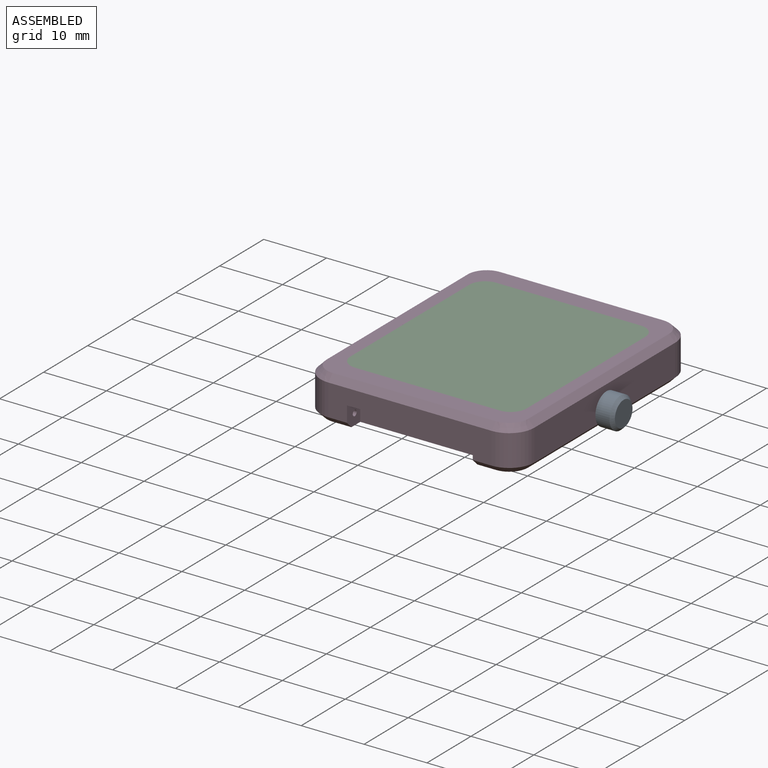
[diagram: assembled view]
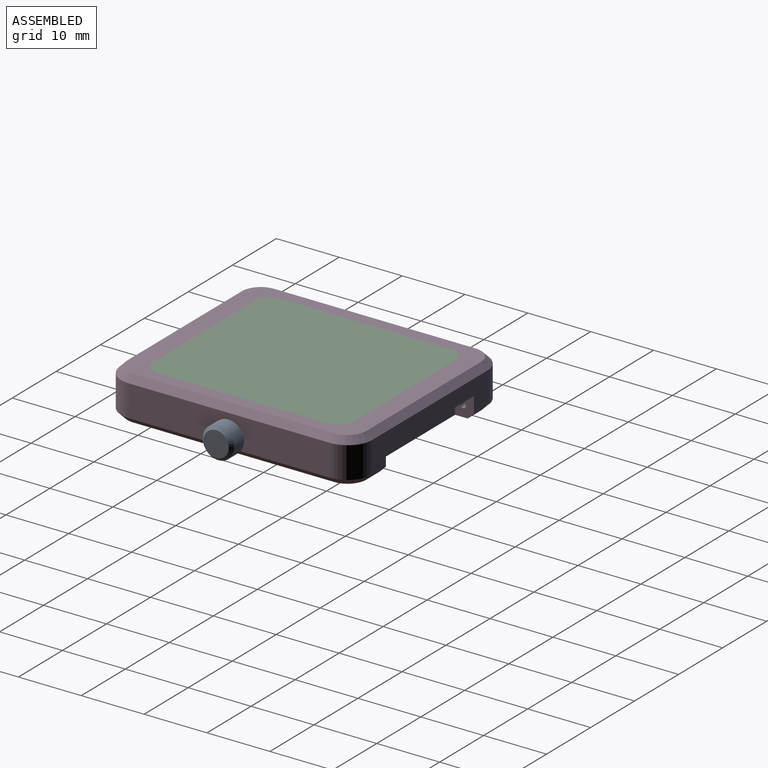
[diagram: assembled view, second angle]
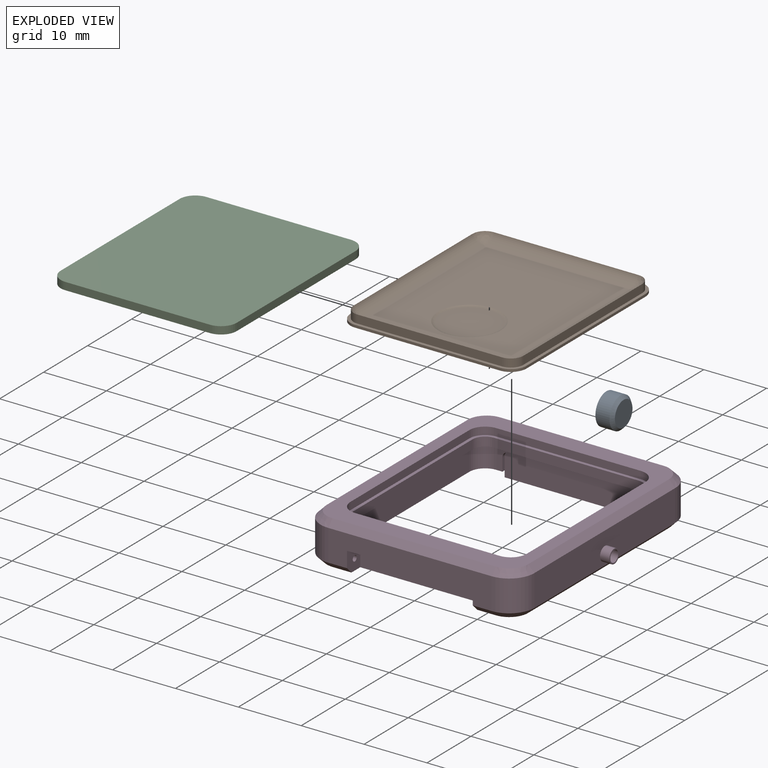
[diagram: exploded view]
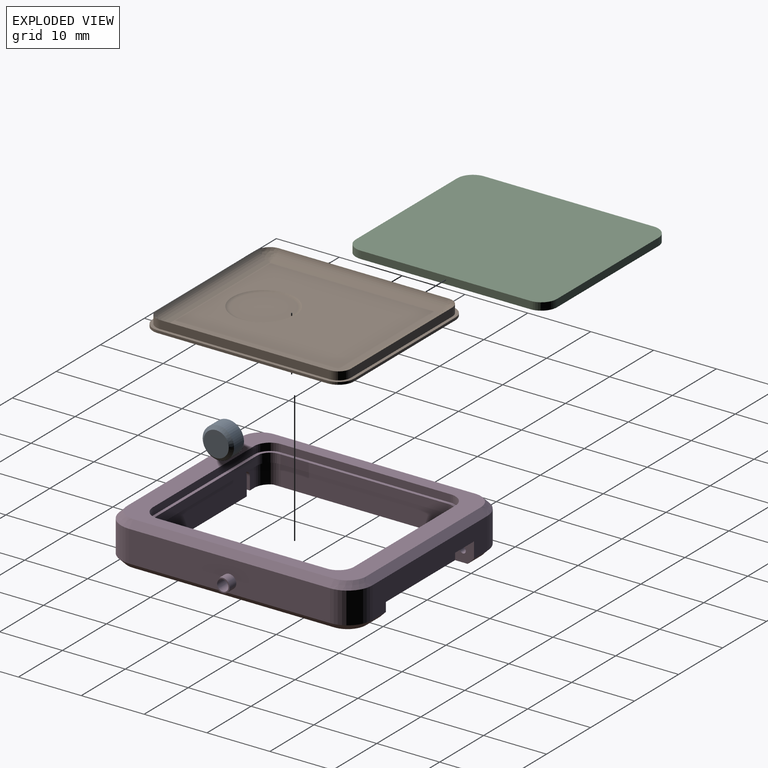
[diagram: exploded view, second angle]
ASSEMBLY  parts=4 mates=3
PART A: 8 faces, bbox 3x5x5 mm
  f0: cylinder r=2.5mm len=5mm, axis (-1,0,0), area 35.3mm2, adj f3,f7
  f1: plane 4x4mm, normal (1,0,0), area 12.6mm2, adj f7
  f2: plane 3.6x3.6mm, normal (-1,0,0), area 4.5mm2, adj f3,f6
  f3: cone r=1.8mm half-angle=70.3deg, axis (1,0,0), area 10mm2, adj f0,f2
  f4: cylinder r=1.15mm len=2.3mm, axis (-1,0,0), area 9.4mm2, adj f5,f6
  f5: plane 2.3x2.3mm, normal (-1,0,0), area 4.2mm2, adj f4
  f6: cone r=1.15mm half-angle=45deg, axis (-1,0,0), area 2.2mm2, adj f2,f4
  f7: cone r=2.5mm half-angle=45deg, axis (-1,0,0), area 10mm2, adj f0,f1
PART B: 29 faces, bbox 28x32x1.7 mm
  f0: plane 27x23mm, normal (0,0,1), area 542.5mm2, adj f2,f5,f9,f13,f17
  f1: plane 8.95x8.95mm, normal (0,0,1), area 62.9mm2, adj f2
  f2: torus R=4.47mm, axis (0,0,-1), area 16.5mm2, adj f0,f1
  f3: bspline ~2x2mm, area 4.4mm2, adj f4,f5,f17
  f4: cylinder r=2mm len=2mm, axis (0,0,1), area 4.1mm2, adj f3,f6,f18,f28
  f5: bspline ~23x2mm, area 57.2mm2, adj f0,f3,f6,f7
  f6: plane 23x1.3mm, normal (0,1,0), area 29.9mm2, adj f4,f5,f8,f28
  f7: bspline ~2x2mm, area 4.4mm2, adj f5,f8,f9
  f8: cylinder r=2mm len=2mm, axis (0,0,1), area 4.1mm2, adj f6,f7,f10,f28
  f9: bspline ~27x2mm, area 67.2mm2, adj f0,f7,f10,f11
  f10: plane 27x1.3mm, normal (1,0,0), area 35.1mm2, adj f8,f9,f12,f28
  f11: bspline ~2x2mm, area 4.4mm2, adj f9,f12,f13
  f12: cylinder r=2mm len=2mm, axis (0,0,1), area 4.1mm2, adj f10,f11,f14,f28
  f13: bspline ~23x2mm, area 57.2mm2, adj f0,f11,f14,f15
  f14: plane 23x1.3mm, normal (0,-1,0), area 29.9mm2, adj f12,f13,f16,f28
  f15: bspline ~2x2mm, area 4.4mm2, adj f13,f16,f17
  f16: cylinder r=2mm len=2mm, axis (0,0,1), area 4.1mm2, adj f14,f15,f18,f28
  f17: bspline ~27x2mm, area 67.2mm2, adj f0,f3,f15,f18
  f18: plane 27x1.3mm, normal (-1,0,0), area 35.1mm2, adj f4,f16,f17,f28
  f19: plane 32x28mm, normal (0,0,-1), area 890.6mm2, adj f20,f21,f22,f23,f24,f25,f26,f27
  f20: cylinder r=2.5mm len=2.5mm, axis (0,0,-1), area 1.6mm2, adj f19,f21,f27,f28
  f21: plane 23x0.4mm, normal (0,-1,0), area 9.2mm2, adj f19,f20,f22,f28
  f22: cylinder r=2.5mm len=2.5mm, axis (0,0,1), area 1.6mm2, adj f19,f21,f23,f28
  f23: plane 27x0.4mm, normal (-1,0,0), area 10.8mm2, adj f19,f22,f24,f28
  f24: cylinder r=2.5mm len=2.5mm, axis (0,0,-1), area 1.6mm2, adj f19,f23,f25,f28
  f25: plane 23x0.4mm, normal (0,1,0), area 9.2mm2, adj f19,f24,f26,f28
  f26: cylinder r=2.5mm len=2.5mm, axis (0,0,1), area 1.6mm2, adj f19,f25,f27,f28
  f27: plane 27x0.4mm, normal (1,0,0), area 10.8mm2, adj f19,f20,f26,f28
  f28: plane 32x28mm, normal (0,0,1), area 57.1mm2, adj f4,f6,f8,f10,f12,f14,f16,f18
PART C: 10 faces, bbox 28x32x1.2 mm
  f0: plane 27x1.2mm, normal (1,0,0), area 32.4mm2, adj f4,f5,f6,f9
  f1: plane 23x1.2mm, normal (0,1,0), area 27.6mm2, adj f4,f5,f6,f7
  f2: plane 27x1.2mm, normal (-1,0,0), area 32.4mm2, adj f4,f5,f7,f8
  f3: plane 23x1.2mm, normal (0,-1,0), area 27.6mm2, adj f4,f5,f8,f9
  f4: plane 32x28mm, normal (0,0,1), area 890.6mm2, adj f0,f1,f2,f3,f6,f7,f8,f9
  f5: plane 32x28mm, normal (0,0,-1), area 890.6mm2, adj f0,f1,f2,f3,f6,f7,f8,f9
  f6: cylinder r=2.5mm len=2.5mm, axis (0,0,1), area 4.7mm2, adj f0,f1,f4,f5
  f7: cylinder r=2.5mm len=2.5mm, axis (0,0,-1), area 4.7mm2, adj f1,f2,f4,f5
  f8: cylinder r=2.5mm len=2.5mm, axis (0,0,1), area 4.7mm2, adj f2,f3,f4,f5
  f9: cylinder r=2.5mm len=2.5mm, axis (0,0,-1), area 4.7mm2, adj f0,f3,f4,f5
PART D: 101 faces, bbox 35.5x40x7 mm
  f0: plane 37x5mm, normal (0,0,-1), area 73mm2, adj f1,f4,f5,f7,f8,f68,f69,f70
  f1: plane 23x3.35mm, normal (0,-1,0), area 14.5mm2, adj f0,f6,f7,f65,f82,f86,f87,f88
  f2: plane 38x32mm, normal (0,0,-1), area 70.6mm2, adj f11,f12,f38,f39,f40,f41,f42,f43
  f3: plane 27x3.35mm, normal (-1,0,0), area 87.9mm2, adj f6,f9,f62,f65,f82
  f4: plane 27x3.35mm, normal (1,0,0), area 90.4mm2, adj f0,f7,f8,f65
  f5: plane 23x3.35mm, normal (0,1,0), area 14.5mm2, adj f0,f8,f9,f65,f82,f83,f84,f85
  f6: cylinder r=2.5mm len=3.35mm, axis (0,0,-1), area 13.2mm2, adj f1,f3,f65,f82
  f7: cylinder r=2.5mm len=3.35mm, axis (0,0,1), area 13.2mm2, adj f0,f1,f4,f65
  f8: cylinder r=2.5mm len=3.35mm, axis (0,0,-1), area 13.2mm2, adj f0,f4,f5,f65
  f9: cylinder r=2.5mm len=3.35mm, axis (0,0,1), area 13.2mm2, adj f3,f5,f65,f82
  f10: plane 26x5mm, normal (0,-1,0), area 80mm2, adj f11,f28,f29,f42,f50,f58,f59,f60
  f11: plane 3x1mm, normal (0,-0.71,-0.71), area 4.2mm2, adj f2,f10,f44,f58
  f12: plane 3x1mm, normal (0,0.71,-0.71), area 4.2mm2, adj f2,f17,f39,f54
  f13: plane 23x1.2mm, normal (0,-1,0), area 27.6mm2, adj f20,f25,f34,f37
  f14: plane 27x1.2mm, normal (-1,0,0), area 32.4mm2, adj f20,f25,f34,f35
  f15: plane 23x1.2mm, normal (0,1,0), area 27.6mm2, adj f20,f25,f35,f36
  f16: plane 32x5mm, normal (1,0,0), area 156.2mm2, adj f26,f29,f45,f53,f63
  f17: plane 26x5mm, normal (0,1,0), area 80mm2, adj f12,f26,f27,f41,f49,f54,f55,f56
  f18: plane 32x5mm, normal (-1,0,0), area 160mm2, adj f27,f28,f38,f46
  f19: plane 27x1.2mm, normal (1,0,0), area 32.4mm2, adj f20,f25,f36,f37
  f20: plane 38x32mm, normal (0,0,1), area 317.6mm2, adj f13,f14,f15,f19,f34,f35,f36,f37
  f21: plane 23x1.45mm, normal (0,-1,0), area 33.3mm2, adj f25,f30,f33,f65
  f22: plane 27x1.45mm, normal (-1,0,0), area 39.1mm2, adj f25,f30,f31,f65
  f23: plane 23x1.45mm, normal (0,1,0), area 33.3mm2, adj f25,f31,f32,f65
  f24: plane 27x1.45mm, normal (1,0,0), area 39.1mm2, adj f25,f32,f33,f65
  f25: plane 32x28mm, normal (0,0,1), area 57.1mm2, adj f13,f14,f15,f19,f21,f22,f23,f24
  f26: cylinder r=4mm len=5mm, axis (0,0,1), area 31.4mm2, adj f16,f17,f43,f51
  f27: cylinder r=4mm len=5mm, axis (0,0,-1), area 31.4mm2, adj f17,f18,f39,f47
  f28: cylinder r=4mm len=5mm, axis (0,0,1), area 31.4mm2, adj f10,f18,f40,f48
  f29: cylinder r=4mm len=5mm, axis (0,0,-1), area 31.4mm2, adj f10,f16,f44,f52
  f30: cylinder r=2mm len=2mm, axis (0,0,-1), area 4.6mm2, adj f21,f22,f25,f65
  f31: cylinder r=2mm len=2mm, axis (0,0,1), area 4.6mm2, adj f22,f23,f25,f65
  f32: cylinder r=2mm len=2mm, axis (0,0,-1), area 4.6mm2, adj f23,f24,f25,f65
  f33: cylinder r=2mm len=2mm, axis (0,0,1), area 4.6mm2, adj f21,f24,f25,f65
  f34: cylinder r=2.5mm len=2.5mm, axis (0,0,-1), area 4.7mm2, adj f13,f14,f20,f25
  f35: cylinder r=2.5mm len=2.5mm, axis (0,0,1), area 4.7mm2, adj f14,f15,f20,f25
  f36: cylinder r=2.5mm len=2.5mm, axis (0,0,-1), area 4.7mm2, adj f15,f19,f20,f25
  f37: cylinder r=2.5mm len=2.5mm, axis (0,0,1), area 4.7mm2, adj f13,f19,f20,f25
  f38: plane 32x1mm, normal (-0.71,0,-0.71), area 45.3mm2, adj f2,f18,f39,f40
  f39: cone r=3mm half-angle=45deg, axis (0,0,1), area 7.8mm2, adj f2,f12,f27,f38
  f40: cone r=3mm half-angle=45deg, axis (0,0,1), area 7.8mm2, adj f2,f28,f38,f42
  f41: plane 3x1mm, normal (0,0.71,-0.71), area 4.2mm2, adj f2,f17,f43,f56
  f42: plane 3x1mm, normal (0,-0.71,-0.71), area 4.2mm2, adj f2,f10,f40,f60
  f43: cone r=3mm half-angle=45deg, axis (0,0,1), area 7.8mm2, adj f2,f26,f41,f45
  f44: cone r=3mm half-angle=45deg, axis (0,0,1), area 7.8mm2, adj f2,f11,f29,f45
  f45: plane 32x1mm, normal (0.71,0,-0.71), area 45.3mm2, adj f2,f16,f43,f44
  f46: plane 32x1mm, normal (-0.71,0,0.71), area 45.3mm2, adj f18,f20,f47,f48
  f47: cone r=3mm half-angle=45deg, axis (0,0,-1), area 7.8mm2, adj f20,f27,f46,f49
  f48: cone r=3mm half-angle=45deg, axis (0,0,-1), area 7.8mm2, adj f20,f28,f46,f50
  f49: plane 26x1mm, normal (0,0.71,0.71), area 36.8mm2, adj f17,f20,f47,f51
  f50: plane 26x1mm, normal (0,-0.71,0.71), area 36.8mm2, adj f10,f20,f48,f52
  f51: cone r=3mm half-angle=45deg, axis (0,0,-1), area 7.8mm2, adj f20,f26,f49,f53
  f52: cone r=3mm half-angle=45deg, axis (0,0,-1), area 7.8mm2, adj f20,f29,f50,f53
  f53: plane 32x1mm, normal (0.71,0,0.71), area 45.3mm2, adj f16,f20,f51,f52
  f54: plane 3.5x3mm, normal (1,0,0), area 9.4mm2, adj f2,f12,f17,f55,f57,f99
  f55: plane 20x3mm, normal (0,0,-1), area 60mm2, adj f17,f54,f56,f57
  f56: plane 3.5x3mm, normal (-1,0,0), area 9.4mm2, adj f2,f17,f41,f55,f57,f98
  f57: plane 20x3.5mm, normal (0,1,0), area 70mm2, adj f2,f54,f55,f56
  f58: plane 3.5x3mm, normal (-1,0,0), area 9.4mm2, adj f2,f10,f11,f59,f61,f95
  f59: plane 20x3mm, normal (0,0,-1), area 60mm2, adj f10,f58,f60,f61
  f60: plane 3.5x3mm, normal (1,0,0), area 9.4mm2, adj f2,f10,f42,f59,f61,f94
  f61: plane 20x3.5mm, normal (0,-1,0), area 70mm2, adj f2,f58,f59,f60
  f62: cylinder r=0.9mm len=4.5mm, axis (-1,0,0), area 25.4mm2, adj f3,f64
  f63: cylinder r=1.1mm len=2.2mm, axis (-1,0,0), area 10.4mm2, adj f16,f64
  f64: plane 2.2x2.2mm, normal (1,0,0), area 1.3mm2, adj f62,f63
  f65: plane 32x28mm, normal (0,0,-1), area 57.1mm2, adj f1,f3,f4,f5,f6,f7,f8,f9
  f66: plane 2x1mm, normal (1,0,0), area 2mm2, adj f2,f67,f81,f82
  f67: plane 21x4mm, normal (0,1,0), area 83.6mm2, adj f2,f66,f68,f83,f84,f85,f89,f90
  f68: plane 2x1mm, normal (-1,0,0), area 2mm2, adj f0,f2,f67,f69
  f69: plane 2.5x1mm, normal (0,1,0), area 2.5mm2, adj f0,f2,f68,f70
  f70: cylinder r=2.5mm len=2.5mm, axis (0,0,-1), area 3.9mm2, adj f0,f2,f69,f71
  f71: plane 32x1mm, normal (1,0,0), area 32mm2, adj f0,f2,f70,f72
  f72: cylinder r=2.5mm len=2.5mm, axis (0,0,-1), area 3.9mm2, adj f0,f2,f71,f73
  f73: plane 2.5x1mm, normal (0,-1,0), area 2.5mm2, adj f0,f2,f72,f74
  f74: plane 2x1mm, normal (-1,0,0), area 2mm2, adj f0,f2,f73,f75
  f75: plane 21x4mm, normal (0,-1,0), area 83.6mm2, adj f2,f74,f76,f86,f87,f88,f91,f92
  f76: plane 2x1mm, normal (1,0,0), area 2mm2, adj f2,f75,f77,f82
  f77: plane 2.5x1mm, normal (0,-1,0), area 2.5mm2, adj f2,f76,f78,f82
  f78: cylinder r=2.5mm len=2.5mm, axis (0,0,-1), area 3.9mm2, adj f2,f77,f79,f82
  f79: plane 32x1mm, normal (-1,0,0), area 32mm2, adj f2,f78,f80,f82
  f80: cylinder r=2.5mm len=2.5mm, axis (0,0,-1), area 3.9mm2, adj f2,f79,f81,f82
  f81: plane 2.5x1mm, normal (0,1,0), area 2.5mm2, adj f2,f66,f80,f82
  f82: plane 37x5mm, normal (0,0,-1), area 73mm2, adj f1,f3,f5,f6,f9,f66,f76,f77
  f83: plane 2x0.5mm, normal (1,0,0), area 1mm2, adj f0,f5,f67,f89
  f84: plane 2x0.5mm, normal (-1,0,0), area 1mm2, adj f5,f67,f82,f90
  f85: plane 19x0.5mm, normal (0,0,-1), area 9.5mm2, adj f5,f67,f89,f90
  f86: plane 2x0.5mm, normal (-1,0,0), area 1mm2, adj f1,f75,f82,f91
  f87: plane 2x0.5mm, normal (1,0,0), area 1mm2, adj f0,f1,f75,f92
  f88: plane 19x0.5mm, normal (0,0,-1), area 9.5mm2, adj f1,f75,f91,f92
  f89: cylinder r=1mm len=1mm, axis (0,1,0), area 0.8mm2, adj f5,f67,f83,f85
  f90: cylinder r=1mm len=1mm, axis (0,-1,0), area 0.8mm2, adj f5,f67,f84,f85
  f91: cylinder r=1mm len=1mm, axis (0,-1,0), area 0.8mm2, adj f1,f75,f86,f88
  f92: cylinder r=1mm len=1mm, axis (0,1,0), area 0.8mm2, adj f1,f75,f87,f88
  f93: plane 0.9x0.9mm, normal (1,0,0), area 0.6mm2, adj f94
  f94: cylinder r=0.45mm len=1.25mm, axis (1,0,0), area 3.5mm2, adj f60,f93
  f95: cylinder r=0.45mm len=1.25mm, axis (1,0,0), area 3.5mm2, adj f58,f96
  f96: plane 0.9x0.9mm, normal (-1,0,0), area 0.6mm2, adj f95
  f97: plane 0.9x0.9mm, normal (-1,0,0), area 0.6mm2, adj f98
  f98: cylinder r=0.45mm len=1.25mm, axis (1,0,0), area 3.5mm2, adj f56,f97
  f99: cylinder r=0.45mm len=1.25mm, axis (1,0,0), area 3.5mm2, adj f54,f100
  f100: plane 0.9x0.9mm, normal (1,0,0), area 0.6mm2, adj f99
PLACE A t=(16.31,-0.03,-0.89)mm
PLACE B t=(-0.69,-0.03,0.36)mm
PLACE C t=(-0.69,-0.03,2.21)mm
PLACE D t=(-0.69,-0.03,-3.59)mm
MATE fastened C.f5 <-> D.f25  axis (0,0,-1) through (10.81,-16.03,2.21)mm
MATE fastened A.f4 <-> D.f63  axis (-1,0,0) through (17.81,-0.03,-0.89)mm
MATE fastened B.f28 <-> D.f65  axis (0,0,1) through (-12.19,-16.03,0.76)mm
